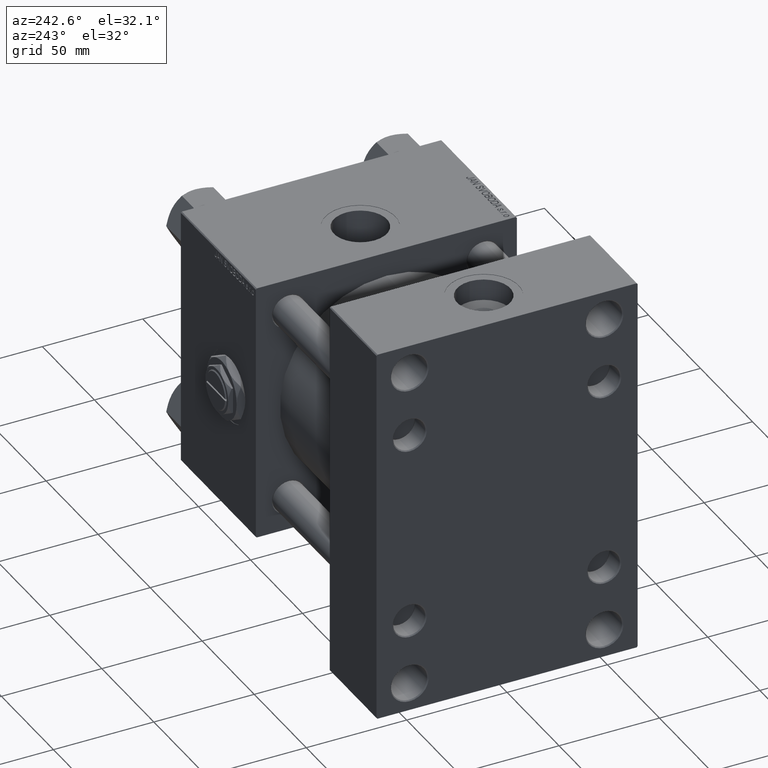
[diagram: clean part render]
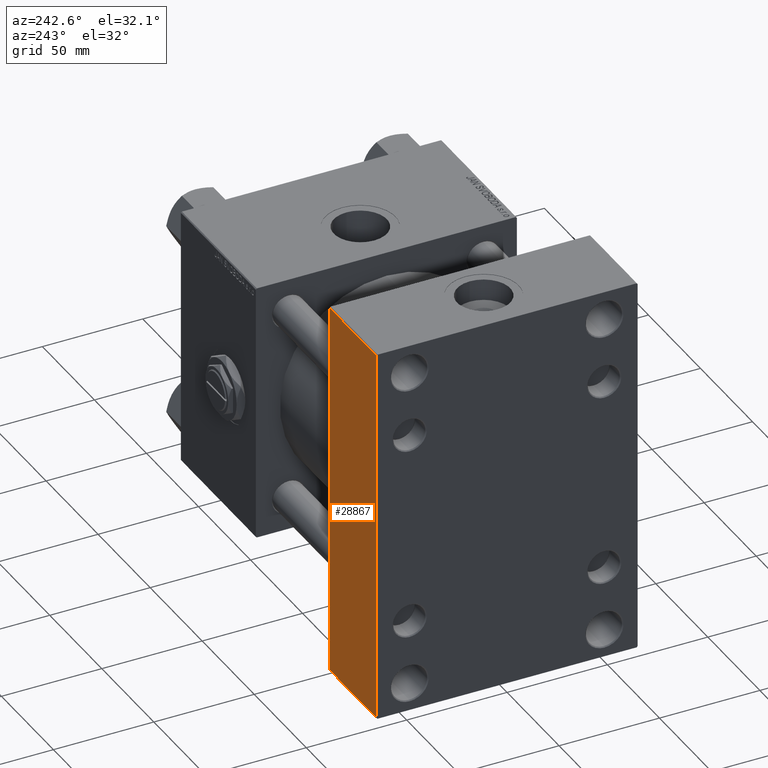
[diagram: same view with one face highlighted and labeled with its STEP entity id]
A machine part, auxiliary view. The second image highlights one B-rep face of the part: STEP entity #28867.
In plain terms, the highlighted planar face has unit normal (0, 1, 0).
Its self-contained STEP definition (entity closure, byte-faithful):
#883 = LINE ( 'NONE', #9075, #16262 ) ;
#2533 = CARTESIAN_POINT ( 'NONE',  ( 45.00000000000000000, 65.00000000000002842, -94.50000000000002842 ) ) ;
#3240 = LINE ( 'NONE', #23057, #8061 ) ;
#4495 = LINE ( 'NONE', #12951, #36708 ) ;
#8061 = VECTOR ( 'NONE', #10647, 1000.000000000000000 ) ;
#8530 = DIRECTION ( 'NONE',  ( 0.000000000000000000, -0.000000000000000000, 1.000000000000000000 ) ) ;
#8753 = AXIS2_PLACEMENT_3D ( 'NONE', #28598, #32552, #8530 ) ;
#9075 = CARTESIAN_POINT ( 'NONE',  ( 45.00000000000000000, 65.00000000000002842, 94.49999999999997158 ) ) ;
#9173 = VERTEX_POINT ( 'NONE', #2533 ) ;
#10647 = DIRECTION ( 'NONE',  ( -1.000000000000000000, 0.000000000000000000, 0.000000000000000000 ) ) ;
#11973 = FACE_OUTER_BOUND ( 'NONE', #36039, .T. ) ;
#12951 = CARTESIAN_POINT ( 'NONE',  ( 0.000000000000000000, 65.00000000000002842, 94.99999999999997158 ) ) ;
#13362 = ORIENTED_EDGE ( 'NONE', *, *, #50393, .T. ) ;
#13661 = ORIENTED_EDGE ( 'NONE', *, *, #48387, .T. ) ;
#14756 = ORIENTED_EDGE ( 'NONE', *, *, #22172, .T. ) ;
#16262 = VECTOR ( 'NONE', #36797, 1000.000000000000000 ) ;
#19871 = LINE ( 'NONE', #46615, #32632 ) ;
#22172 = EDGE_CURVE ( 'NONE', #38688, #41234, #883, .T. ) ;
#23057 = CARTESIAN_POINT ( 'NONE',  ( 45.00000000000000000, 65.00000000000002842, -94.50000000000002842 ) ) ;
#27285 = VERTEX_POINT ( 'NONE', #32470 ) ;
#28598 = CARTESIAN_POINT ( 'NONE',  ( 45.00000000000000000, 65.00000000000002842, 94.99999999999997158 ) ) ;
#28867 = ADVANCED_FACE ( 'NONE', ( #11973 ), #36776, .T. ) ;
#30473 = CARTESIAN_POINT ( 'NONE',  ( 45.00000000000000000, 65.00000000000002842, 94.49999999999997158 ) ) ;
#31940 = ORIENTED_EDGE ( 'NONE', *, *, #43513, .F. ) ;
#32470 = CARTESIAN_POINT ( 'NONE',  ( 0.000000000000000000, 65.00000000000002842, -94.50000000000002842 ) ) ;
#32552 = DIRECTION ( 'NONE',  ( -0.000000000000000000, 1.000000000000000000, 0.000000000000000000 ) ) ;
#32632 = VECTOR ( 'NONE', #43372, 1000.000000000000000 ) ;
#36039 = EDGE_LOOP ( 'NONE', ( #13362, #13661, #31940, #14756 ) ) ;
#36708 = VECTOR ( 'NONE', #45192, 1000.000000000000000 ) ;
#36776 = PLANE ( 'NONE',  #8753 ) ;
#36797 = DIRECTION ( 'NONE',  ( 1.000000000000000000, 0.000000000000000000, 0.000000000000000000 ) ) ;
#38688 = VERTEX_POINT ( 'NONE', #52001 ) ;
#41234 = VERTEX_POINT ( 'NONE', #30473 ) ;
#43372 = DIRECTION ( 'NONE',  ( 0.000000000000000000, 0.000000000000000000, -1.000000000000000000 ) ) ;
#43513 = EDGE_CURVE ( 'NONE', #38688, #27285, #4495, .T. ) ;
#45192 = DIRECTION ( 'NONE',  ( 0.000000000000000000, 0.000000000000000000, -1.000000000000000000 ) ) ;
#46615 = CARTESIAN_POINT ( 'NONE',  ( 45.00000000000000000, 65.00000000000002842, 94.99999999999997158 ) ) ;
#48387 = EDGE_CURVE ( 'NONE', #9173, #27285, #3240, .T. ) ;
#50393 = EDGE_CURVE ( 'NONE', #41234, #9173, #19871, .T. ) ;
#52001 = CARTESIAN_POINT ( 'NONE',  ( 0.000000000000000000, 65.00000000000002842, 94.49999999999997158 ) ) ;